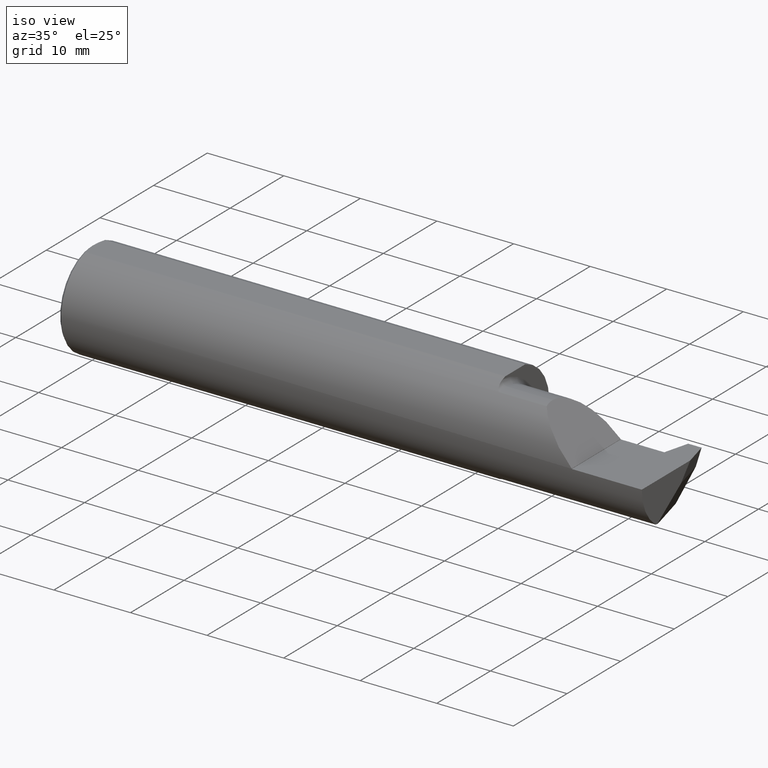
[diagram: clean part render]
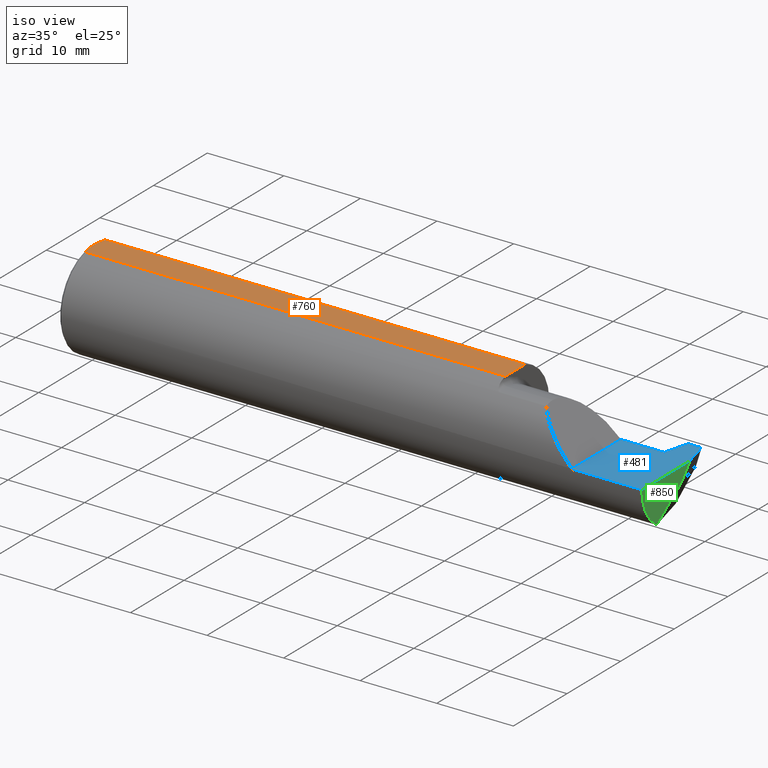
[diagram: same view with three faces highlighted in distinct colors, each labeled with its STEP entity id]
A machine part, iso view with three faces highlighted in distinct colors.
Their STEP definitions:

[orange] entity #760 — the highlighted planar face has unit normal (-0, 0, -1).
#26 = ORIENTED_EDGE ( 'NONE', *, *, #153, .T. ) ;
#29 = VERTEX_POINT ( 'NONE', #417 ) ;
#44 = VERTEX_POINT ( 'NONE', #411 ) ;
#116 = LINE ( 'NONE', #404, #435 ) ;
#132 = DIRECTION ( 'NONE',  ( 1.000000000000000000, 0.000000000000000000, 0.000000000000000000 ) ) ;
#134 = EDGE_CURVE ( 'NONE', #416, #601, #116, .T. ) ;
#153 = EDGE_CURVE ( 'NONE', #416, #44, #393, .T. ) ;
#155 = CARTESIAN_POINT ( 'NONE',  ( 0.004000000000001628989, 0.02507688590673098211, 0.2388499999999999790 ) ) ;
#173 = LINE ( 'NONE', #241, #894 ) ;
#227 = AXIS2_PLACEMENT_3D ( 'NONE', #328, #536, #690 ) ;
#241 = CARTESIAN_POINT ( 'NONE',  ( 3.000000000000000444, -0.07331916529803135518, 0.2388499999999998957 ) ) ;
#250 = CARTESIAN_POINT ( 'NONE',  ( 0.007978205860499350960, -0.04939097055354213506, 0.2388499999999999790 ) ) ;
#310 = ORIENTED_EDGE ( 'NONE', *, *, #607, .F. ) ;
#328 = CARTESIAN_POINT ( 'NONE',  ( 0.000000000000000000, 0.1000000000000000056, 0.2388499999999999790 ) ) ;
#334 = CARTESIAN_POINT ( 'NONE',  ( 2.175000000000000266, 0.1000000000000000056, 0.2388499999999999790 ) ) ;
#345 = CARTESIAN_POINT ( 'NONE',  ( 0.004000000000001630723, -8.838795635097487697E-18, 0.2388499999999999790 ) ) ;
#382 = B_SPLINE_CURVE_WITH_KNOTS ( 'NONE', 3,
 ( #345, #555, #250, #609 ),
 .UNSPECIFIED., .F., .F.,
 ( 4, 4 ),
 ( 0.007106848166584502080, 0.008972081732692345837 ),
 .UNSPECIFIED. ) ;
#393 = B_SPLINE_CURVE_WITH_KNOTS ( 'NONE', 3,
 ( #804, #506, #155, #876 ),
 .UNSPECIFIED., .F., .F.,
 ( 4, 4 ),
 ( 0.005234717643982266660, 0.007106848166584502080 ),
 .UNSPECIFIED. ) ;
#404 = CARTESIAN_POINT ( 'NONE',  ( 3.000000000000000444, 0.07331916529803135518, 0.2388499999999998957 ) ) ;
#411 = CARTESIAN_POINT ( 'NONE',  ( 0.004000000000001630723, -8.838795635097487697E-18, 0.2388499999999999790 ) ) ;
#416 = VERTEX_POINT ( 'NONE', #511 ) ;
#417 = CARTESIAN_POINT ( 'NONE',  ( 2.175000000000000266, -0.07331916529803114702, 0.2388499999999999790 ) ) ;
#435 = VECTOR ( 'NONE', #132, 39.37007874015748143 ) ;
#506 = CARTESIAN_POINT ( 'NONE',  ( 0.008000051362619074735, 0.04946541355466502199, 0.2388499999999999790 ) ) ;
#511 = CARTESIAN_POINT ( 'NONE',  ( 0.01500000000000188856, 0.07331916529803116089, 0.2388499999999999790 ) ) ;
#536 = DIRECTION ( 'NONE',  ( -0.000000000000000000, 0.000000000000000000, -1.000000000000000000 ) ) ;
#555 = CARTESIAN_POINT ( 'NONE',  ( 0.004000000000001633325, -0.02498450228869505615, 0.2388499999999999790 ) ) ;
#601 = VERTEX_POINT ( 'NONE', #691 ) ;
#607 = EDGE_CURVE ( 'NONE', #29, #778, #173, .T. ) ;
#609 = CARTESIAN_POINT ( 'NONE',  ( 0.01500000000000188509, -0.07331916529803116089, 0.2388499999999999790 ) ) ;
#615 = DIRECTION ( 'NONE',  ( 0.000000000000000000, -1.000000000000000000, 0.000000000000000000 ) ) ;
#624 = DIRECTION ( 'NONE',  ( -1.000000000000000000, -0.000000000000000000, -0.000000000000000000 ) ) ;
#672 = ORIENTED_EDGE ( 'NONE', *, *, #756, .T. ) ;
#683 = ORIENTED_EDGE ( 'NONE', *, *, #134, .F. ) ;
#690 = DIRECTION ( 'NONE',  ( -1.000000000000000000, 0.000000000000000000, 0.000000000000000000 ) ) ;
#691 = CARTESIAN_POINT ( 'NONE',  ( 2.175000000000000266, 0.07331916529803135518, 0.2388499999999999790 ) ) ;
#692 = ORIENTED_EDGE ( 'NONE', *, *, #791, .F. ) ;
#694 = LINE ( 'NONE', #334, #802 ) ;
#756 = EDGE_CURVE ( 'NONE', #44, #778, #382, .T. ) ;
#760 = ADVANCED_FACE ( 'NONE', ( #847 ), #916, .F. ) ;
#778 = VERTEX_POINT ( 'NONE', #923 ) ;
#791 = EDGE_CURVE ( 'NONE', #601, #29, #694, .T. ) ;
#802 = VECTOR ( 'NONE', #615, 39.37007874015748143 ) ;
#804 = CARTESIAN_POINT ( 'NONE',  ( 0.01500000000000188856, 0.07331916529803116089, 0.2388499999999999790 ) ) ;
#809 = EDGE_LOOP ( 'NONE', ( #692, #683, #26, #672, #310 ) ) ;
#847 = FACE_OUTER_BOUND ( 'NONE', #809, .T. ) ;
#876 = CARTESIAN_POINT ( 'NONE',  ( 0.004000000000001630723, -8.838795635097487697E-18, 0.2388499999999999790 ) ) ;
#894 = VECTOR ( 'NONE', #624, 39.37007874015748143 ) ;
#916 = PLANE ( 'NONE',  #227 ) ;
#923 = CARTESIAN_POINT ( 'NONE',  ( 0.01500000000000188509, -0.07331916529803116089, 0.2388499999999999790 ) ) ;

[blue] entity #481 — the highlighted planar face has unit normal (-0, 0, -1).
#4 = CARTESIAN_POINT ( 'NONE',  ( 2.640000000000000124, 0.2999999999999999889, -6.123031769111886291E-17 ) ) ;
#6 = CARTESIAN_POINT ( 'NONE',  ( 2.175000000000000266, 0.1101499999999999979, -6.123031769111886291E-17 ) ) ;
#11 = VECTOR ( 'NONE', #364, 39.37007874015748854 ) ;
#16 = DIRECTION ( 'NONE',  ( 0.2503800040544308936, 0.9681476403781105189, -0.000000000000000000 ) ) ;
#21 = VERTEX_POINT ( 'NONE', #480 ) ;
#60 = EDGE_CURVE ( 'NONE', #21, #519, #488, .T. ) ;
#80 = CARTESIAN_POINT ( 'NONE',  ( 2.897000000000000242, 0.2381499999999928951, -6.123031769111886291E-17 ) ) ;
#103 = VERTEX_POINT ( 'NONE', #349 ) ;
#105 = ORIENTED_EDGE ( 'NONE', *, *, #60, .F. ) ;
#109 = ORIENTED_EDGE ( 'NONE', *, *, #313, .T. ) ;
#124 = VECTOR ( 'NONE', #428, 39.37007874015748143 ) ;
#144 = CARTESIAN_POINT ( 'NONE',  ( 2.640000000000000124, 0.1101499999999999702, -6.123031769111885058E-17 ) ) ;
#145 = DIRECTION ( 'NONE',  ( -1.000000000000000000, 0.000000000000000000, 0.000000000000000000 ) ) ;
#147 = CARTESIAN_POINT ( 'NONE',  ( 2.962896588987727675, 0.2501499999999999835, 0.000000000000000000 ) ) ;
#165 = CARTESIAN_POINT ( 'NONE',  ( 2.863896949202449527, 0.1101499999999999840, 0.000000000000000000 ) ) ;
#172 = LINE ( 'NONE', #458, #880 ) ;
#217 = LINE ( 'NONE', #147, #11 ) ;
#221 = CARTESIAN_POINT ( 'NONE',  ( 2.640000000000000124, 0.2999999999999999889, -6.123031769111886291E-17 ) ) ;
#235 = VERTEX_POINT ( 'NONE', #871 ) ;
#236 = VERTEX_POINT ( 'NONE', #144 ) ;
#237 = ORIENTED_EDGE ( 'NONE', *, *, #290, .F. ) ;
#245 = VERTEX_POINT ( 'NONE', #80 ) ;
#289 = CARTESIAN_POINT ( 'NONE',  ( 2.640000000000000124, -0.2498499999999999610, -6.123031769111885058E-17 ) ) ;
#290 = EDGE_CURVE ( 'NONE', #103, #235, #217, .T. ) ;
#303 = EDGE_CURVE ( 'NONE', #236, #338, #655, .T. ) ;
#307 = CARTESIAN_POINT ( 'NONE',  ( 3.000000000000000444, 0.2999999999999999889, -6.123031769111886291E-17 ) ) ;
#313 = EDGE_CURVE ( 'NONE', #21, #235, #662, .T. ) ;
#338 = VERTEX_POINT ( 'NONE', #369 ) ;
#344 = ORIENTED_EDGE ( 'NONE', *, *, #575, .F. ) ;
#349 = CARTESIAN_POINT ( 'NONE',  ( 2.966000000000000636, 0.2381499999999917294, 0.000000000000000000 ) ) ;
#354 = VECTOR ( 'NONE', #673, 39.37007874015748143 ) ;
#355 = LINE ( 'NONE', #4, #124 ) ;
#364 = DIRECTION ( 'NONE',  ( 0.2503800040544340577, -0.9681476403781096307, 0.000000000000000000 ) ) ;
#369 = CARTESIAN_POINT ( 'NONE',  ( 2.843896949202449953, 0.1101499999999999702, 0.000000000000000000 ) ) ;
#373 = VECTOR ( 'NONE', #16, 39.37007874015748854 ) ;
#407 = AXIS2_PLACEMENT_3D ( 'NONE', #221, #939, #145 ) ;
#428 = DIRECTION ( 'NONE',  ( -0.000000000000000000, 1.000000000000000000, -0.000000000000000000 ) ) ;
#458 = CARTESIAN_POINT ( 'NONE',  ( 2.639999999999999236, 0.2381499999999972250, -6.123031769111886291E-17 ) ) ;
#469 = ORIENTED_EDGE ( 'NONE', *, *, #517, .F. ) ;
#480 = CARTESIAN_POINT ( 'NONE',  ( 3.000000000000000444, -0.2498499999999999055, -6.123031769111886291E-17 ) ) ;
#481 = ADVANCED_FACE ( 'NONE', ( #579 ), #868, .F. ) ;
#488 = LINE ( 'NONE', #841, #856 ) ;
#491 = ORIENTED_EDGE ( 'NONE', *, *, #905, .F. ) ;
#492 = DIRECTION ( 'NONE',  ( -1.000000000000000000, -0.000000000000000000, -0.000000000000000000 ) ) ;
#517 = EDGE_CURVE ( 'NONE', #519, #236, #355, .T. ) ;
#519 = VERTEX_POINT ( 'NONE', #289 ) ;
#524 = ORIENTED_EDGE ( 'NONE', *, *, #303, .F. ) ;
#542 = VECTOR ( 'NONE', #587, 39.37007874015748143 ) ;
#564 = VERTEX_POINT ( 'NONE', #941 ) ;
#575 = EDGE_CURVE ( 'NONE', #564, #245, #785, .T. ) ;
#579 = FACE_OUTER_BOUND ( 'NONE', #831, .T. ) ;
#587 = DIRECTION ( 'NONE',  ( 1.000000000000000000, 0.000000000000000000, 0.000000000000000000 ) ) ;
#604 = LINE ( 'NONE', #165, #354 ) ;
#655 = LINE ( 'NONE', #6, #542 ) ;
#662 = LINE ( 'NONE', #307, #663 ) ;
#663 = VECTOR ( 'NONE', #797, 39.37007874015748143 ) ;
#673 = DIRECTION ( 'NONE',  ( 1.000000000000000000, 8.537024980200913523E-16, -0.000000000000000000 ) ) ;
#753 = DIRECTION ( 'NONE',  ( -1.000000000000000000, 1.692248368533555514E-14, 0.000000000000000000 ) ) ;
#785 = LINE ( 'NONE', #799, #373 ) ;
#797 = DIRECTION ( 'NONE',  ( -0.000000000000000000, 1.000000000000000000, -0.000000000000000000 ) ) ;
#799 = CARTESIAN_POINT ( 'NONE',  ( 2.900103411012272758, 0.2501499999999999835, 0.000000000000000000 ) ) ;
#831 = EDGE_LOOP ( 'NONE', ( #898, #344, #491, #524, #469, #105, #109, #237 ) ) ;
#841 = CARTESIAN_POINT ( 'NONE',  ( 3.000000000000000444, -0.2498499999999999610, -6.123031769111886291E-17 ) ) ;
#856 = VECTOR ( 'NONE', #492, 39.37007874015748143 ) ;
#868 = PLANE ( 'NONE',  #407 ) ;
#871 = CARTESIAN_POINT ( 'NONE',  ( 3.000000000000000444, 0.1066817547734309896, 0.000000000000000000 ) ) ;
#880 = VECTOR ( 'NONE', #753, 39.37007874015748143 ) ;
#898 = ORIENTED_EDGE ( 'NONE', *, *, #933, .T. ) ;
#905 = EDGE_CURVE ( 'NONE', #338, #564, #604, .T. ) ;
#933 = EDGE_CURVE ( 'NONE', #103, #245, #172, .T. ) ;
#939 = DIRECTION ( 'NONE',  ( -0.000000000000000000, 0.000000000000000000, -1.000000000000000000 ) ) ;
#941 = CARTESIAN_POINT ( 'NONE',  ( 2.863896949202449527, 0.1101499999999999840, 0.000000000000000000 ) ) ;

[green] entity #850 — the highlighted planar face has unit normal (1, 0, 0).
#21 = VERTEX_POINT ( 'NONE', #480 ) ;
#76 = EDGE_CURVE ( 'NONE', #21, #885, #813, .T. ) ;
#78 = DIRECTION ( 'NONE',  ( -0.000000000000000000, 0.8191520442889890230, 0.5735764363510500452 ) ) ;
#84 = LINE ( 'NONE', #867, #198 ) ;
#87 = EDGE_LOOP ( 'NONE', ( #157, #904, #740, #321, #592 ) ) ;
#88 = CARTESIAN_POINT ( 'NONE',  ( 3.000000000000000444, -0.1494886164171398690, -0.2001953447552895227 ) ) ;
#106 = FACE_OUTER_BOUND ( 'NONE', #87, .T. ) ;
#125 = CARTESIAN_POINT ( 'NONE',  ( 3.000000000000000444, -0.09685000000000000553, 0.000000000000000000 ) ) ;
#157 = ORIENTED_EDGE ( 'NONE', *, *, #812, .T. ) ;
#170 = EDGE_CURVE ( 'NONE', #786, #903, #84, .T. ) ;
#195 = DIRECTION ( 'NONE',  ( 0.000000000000000000, 0.000000000000000000, 1.000000000000000000 ) ) ;
#198 = VECTOR ( 'NONE', #78, 39.37007874015748143 ) ;
#200 = CIRCLE ( 'NONE', #390, 0.2069999999999999618 ) ;
#235 = VERTEX_POINT ( 'NONE', #871 ) ;
#271 = CARTESIAN_POINT ( 'NONE',  ( 3.000000000000000444, -0.1363579360798511386, -0.2031947907469834613 ) ) ;
#307 = CARTESIAN_POINT ( 'NONE',  ( 3.000000000000000444, 0.2999999999999999889, -6.123031769111886291E-17 ) ) ;
#313 = EDGE_CURVE ( 'NONE', #21, #235, #662, .T. ) ;
#321 = ORIENTED_EDGE ( 'NONE', *, *, #313, .F. ) ;
#341 = DIRECTION ( 'NONE',  ( 0.000000000000000000, 0.000000000000000000, -1.000000000000000000 ) ) ;
#343 = DIRECTION ( 'NONE',  ( 0.000000000000000000, -0.6426264403010703008, -0.7661796514042739092 ) ) ;
#390 = AXIS2_PLACEMENT_3D ( 'NONE', #125, #541, #195 ) ;
#478 = LINE ( 'NONE', #697, #679 ) ;
#480 = CARTESIAN_POINT ( 'NONE',  ( 3.000000000000000444, -0.2498499999999999055, -6.123031769111886291E-17 ) ) ;
#497 = DIRECTION ( 'NONE',  ( 1.000000000000000000, 0.000000000000000000, 0.000000000000000000 ) ) ;
#541 = DIRECTION ( 'NONE',  ( 1.000000000000000000, -0.000000000000000000, -0.000000000000000000 ) ) ;
#592 = ORIENTED_EDGE ( 'NONE', *, *, #76, .T. ) ;
#631 = DIRECTION ( 'NONE',  ( 1.000000000000000000, 0.000000000000000000, 0.000000000000000000 ) ) ;
#662 = LINE ( 'NONE', #307, #663 ) ;
#663 = VECTOR ( 'NONE', #797, 39.37007874015748143 ) ;
#679 = VECTOR ( 'NONE', #343, 39.37007874015748854 ) ;
#697 = CARTESIAN_POINT ( 'NONE',  ( 3.000000000000000444, 0.06262552473440204104, -0.05252660777181130530 ) ) ;
#699 = CARTESIAN_POINT ( 'NONE',  ( 3.000000000000000444, 0.000000000000000000, 0.000000000000000000 ) ) ;
#700 = PLANE ( 'NONE',  #758 ) ;
#706 = DIRECTION ( 'NONE',  ( 0.000000000000000000, 0.000000000000000000, -1.000000000000000000 ) ) ;
#708 = AXIS2_PLACEMENT_3D ( 'NONE', #699, #497, #706 ) ;
#727 = EDGE_CURVE ( 'NONE', #235, #903, #478, .T. ) ;
#740 = ORIENTED_EDGE ( 'NONE', *, *, #727, .F. ) ;
#758 = AXIS2_PLACEMENT_3D ( 'NONE', #837, #631, #341 ) ;
#786 = VERTEX_POINT ( 'NONE', #271 ) ;
#797 = DIRECTION ( 'NONE',  ( -0.000000000000000000, 1.000000000000000000, -0.000000000000000000 ) ) ;
#812 = EDGE_CURVE ( 'NONE', #885, #786, #200, .T. ) ;
#813 = CIRCLE ( 'NONE', #708, 0.2498499999999999888 ) ;
#825 = CARTESIAN_POINT ( 'NONE',  ( 2.999999999999999556, 0.03958245876647813882, -0.07999999999999052314 ) ) ;
#837 = CARTESIAN_POINT ( 'NONE',  ( 3.000000000000000444, 0.000000000000000000, 0.000000000000000000 ) ) ;
#850 = ADVANCED_FACE ( 'NONE', ( #106 ), #700, .T. ) ;
#867 = CARTESIAN_POINT ( 'NONE',  ( 3.000000000000000444, 0.05060993510442450549, -0.07227847794073088972 ) ) ;
#871 = CARTESIAN_POINT ( 'NONE',  ( 3.000000000000000444, 0.1066817547734309896, 0.000000000000000000 ) ) ;
#885 = VERTEX_POINT ( 'NONE', #88 ) ;
#903 = VERTEX_POINT ( 'NONE', #825 ) ;
#904 = ORIENTED_EDGE ( 'NONE', *, *, #170, .T. ) ;